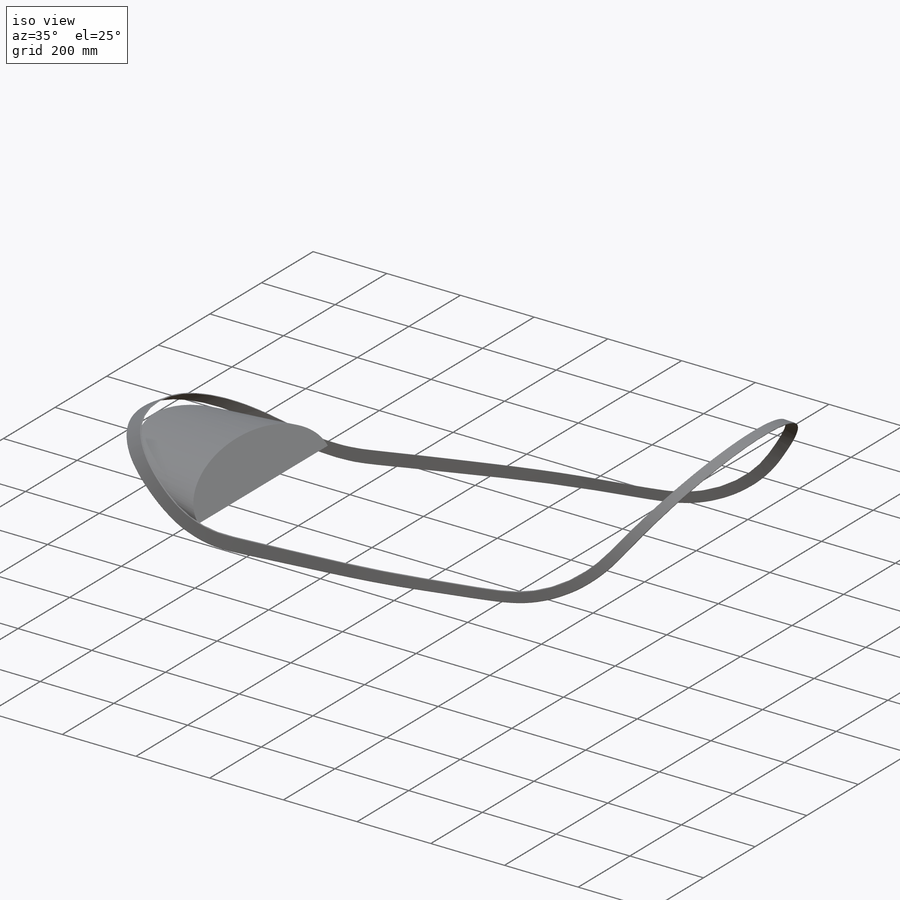
[diagram: iso view]
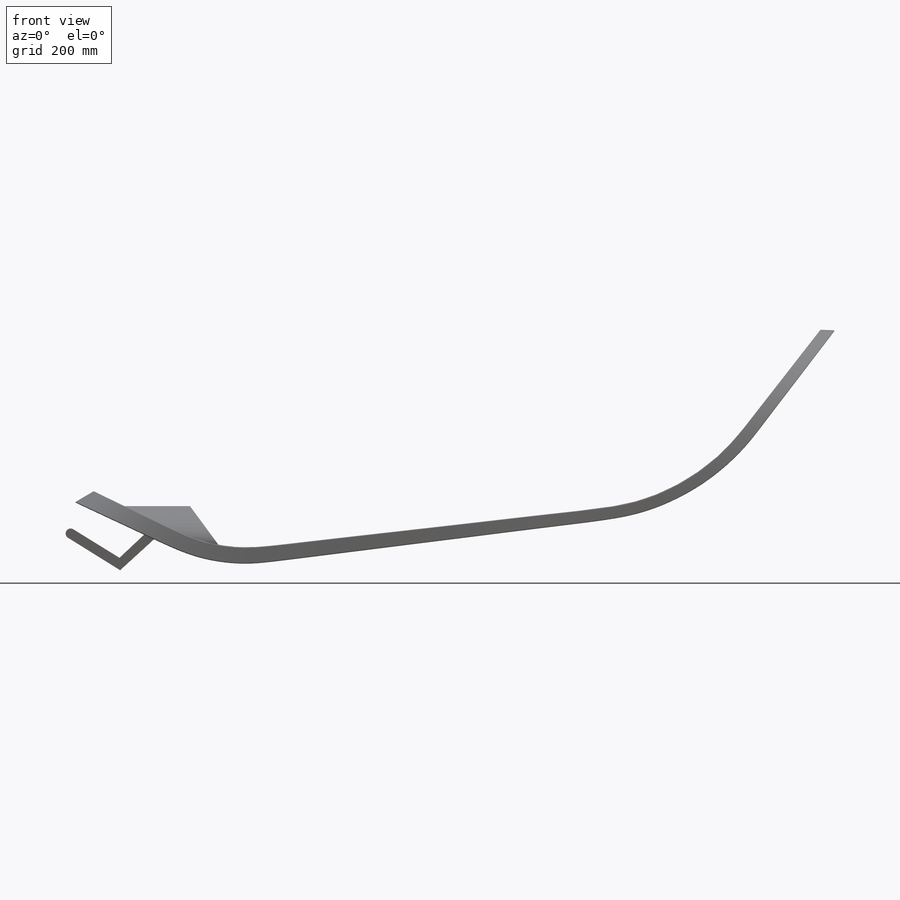
[diagram: front view]
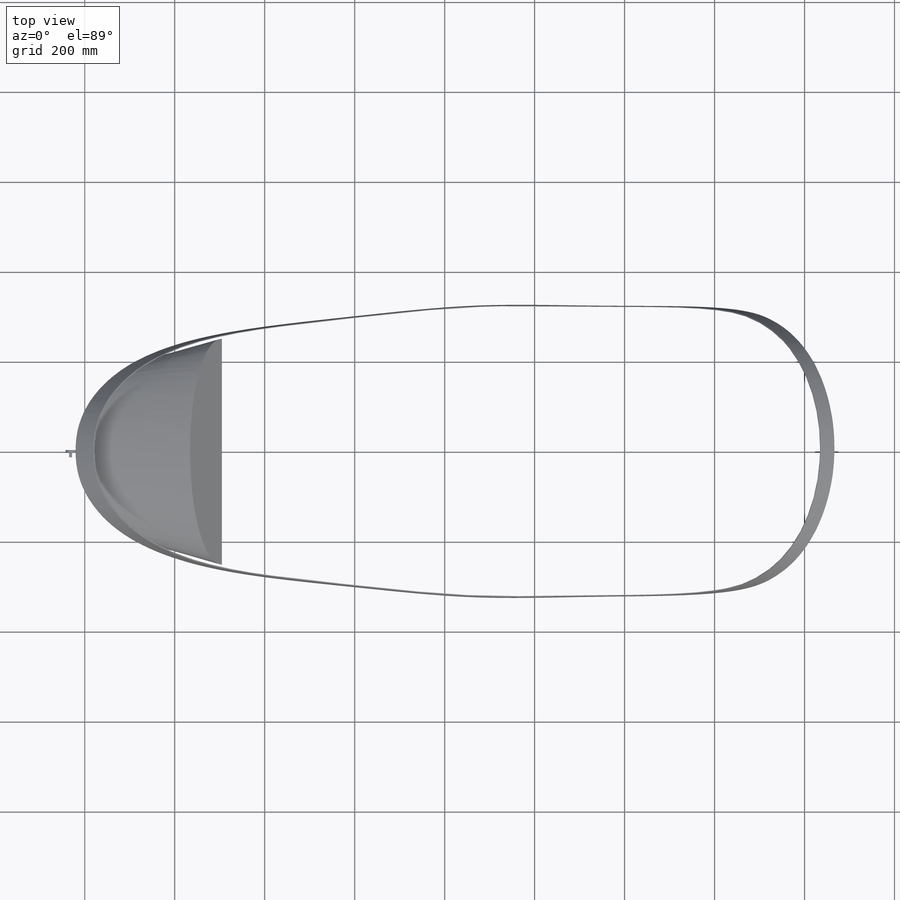
[diagram: top view]
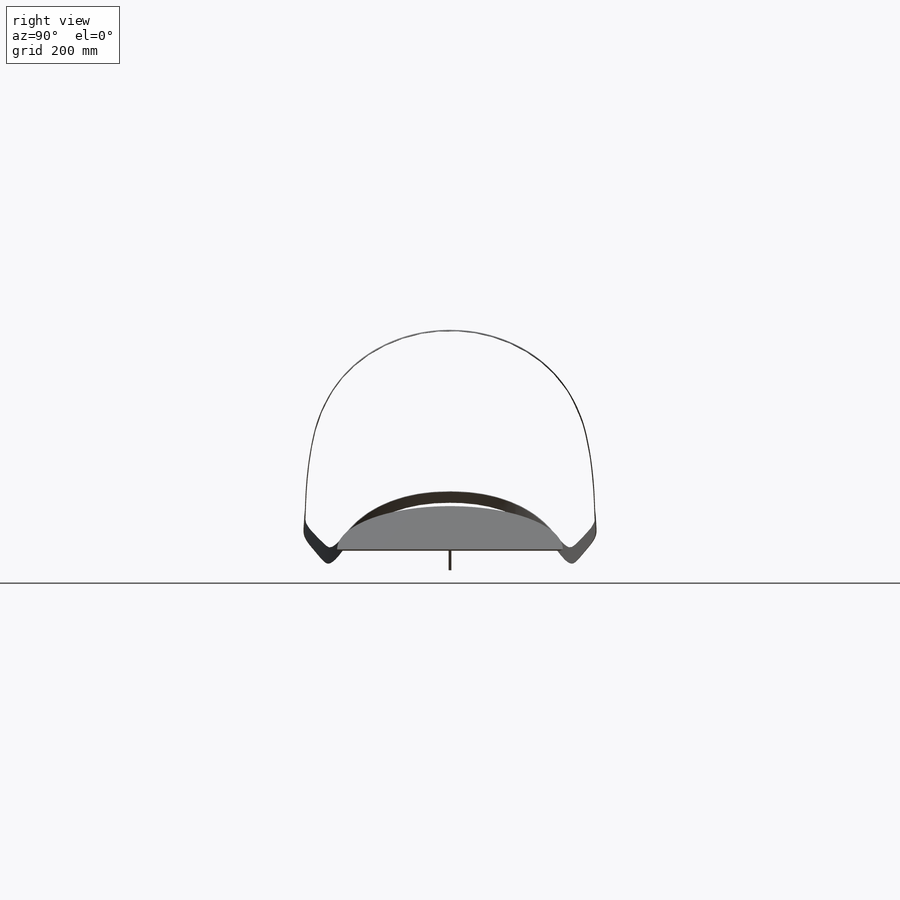
[diagram: right view]
SOLIDWORKS PART (.sldprt)
format: sldprt  version: not decoded by parser v0  size: 2,791,424 bytes
history: native  units: mm
features: sketch x15, plane x3, fillet x2, extrude x2, material x1, mirror x1, shell x1, surface_op x1 (+11 scaffold rows collapsed)
feature tree (37):
  scaffold x11  (default folders/planes/origin — collapsed)
  material  "Material <not specified>"
  mirror  "Mirror1"
  shell  "Shell1"  Thickness=2.54mm
  sketch  "Sketch1"  dims[D1=40.0mm]
  surface_op  "Surface-Extrude1"
  sketch  "3DSketch1"
  sketch  "3DSketch2"
  sketch  "Sketch3"
  sketch  "Sketch4"  dims[D1=2.0mm]
  fillet  "Fillet1"  Radius=1.7mm
  sketch  "3DSketch3"
  sketch  "Sketch5"
  extrude  "Boss-Extrude1"  Depth=6.35mm
  sketch  "Sketch10"  dims[D1=11.1125mm]
  extrude  "Boss-Extrude2"  Depth=12.7mm
  sketch  "Sketch11"
  plane  "Plane1"
  sketch  "Sketch12"
  sketch  "Sketch13"
  plane  "Plane2"
  sketch  "Sketch14"
  plane  "Plane3"
  sketch  "Sketch15"
  sketch  "Sketch16"
  sketch  "Sketch17"
  fillet  "Thicken4"  Radius=5.08mm
decode coverage: 8 of 22 modeling features carry decoded parameters
note: suppression state not decoded; provenance and decode notes live in map.json
